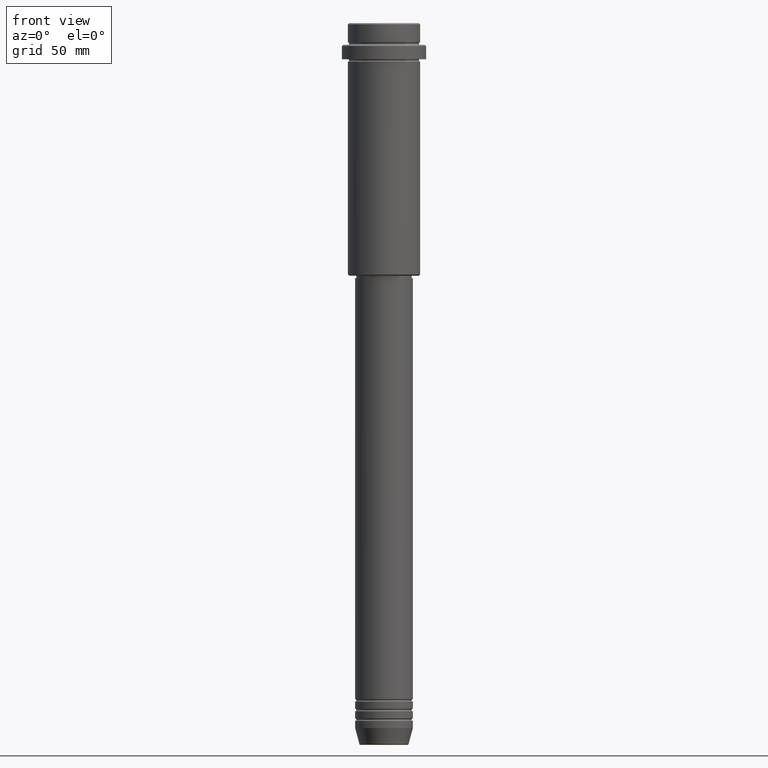
[diagram: clean part render]
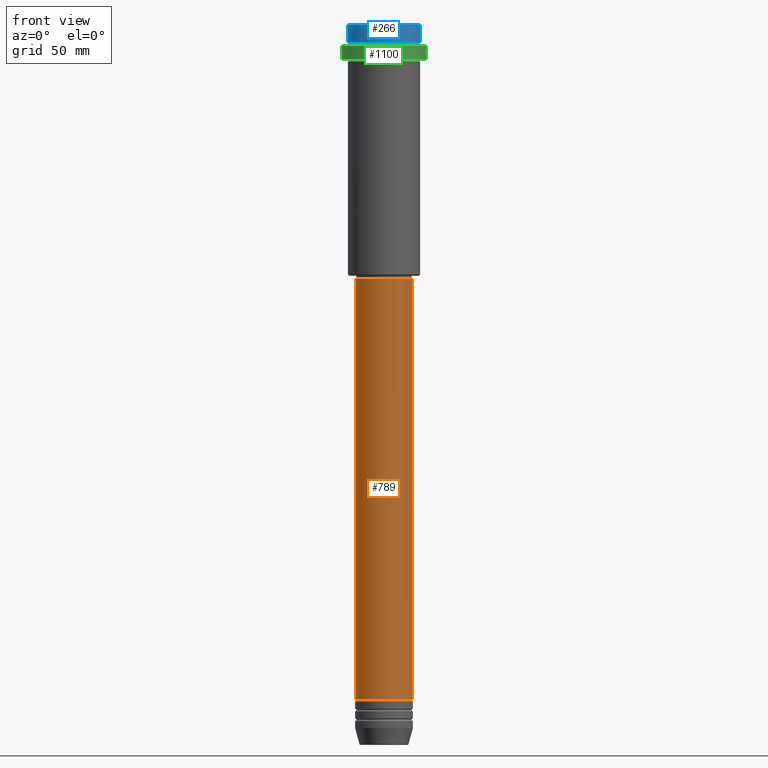
[diagram: same view with three faces highlighted in distinct colors, each labeled with its STEP entity id]
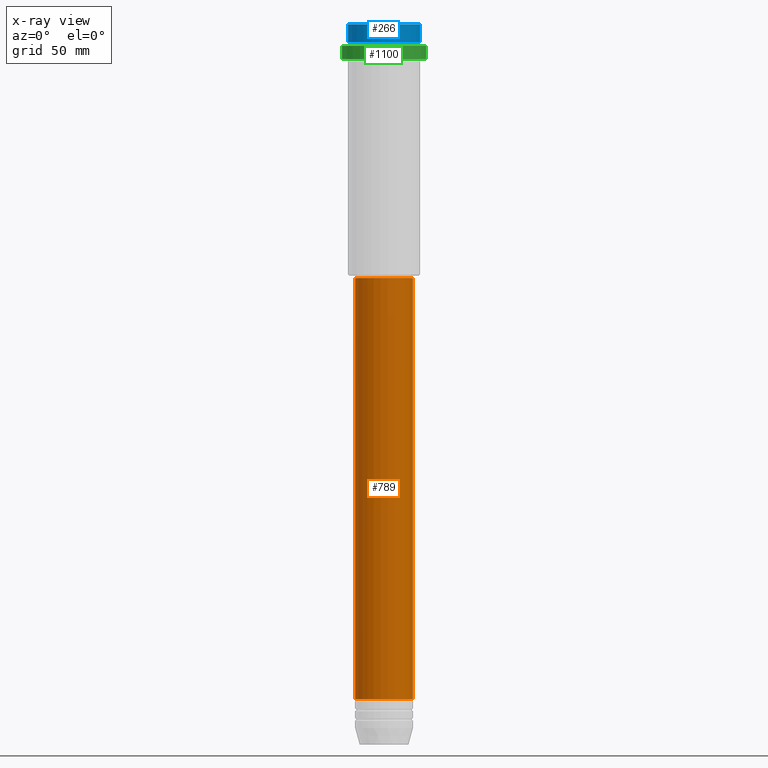
[diagram: x-ray of the same camera — body ghosted, the three highlighted faces saturated]
A machine part, front view with three faces highlighted in distinct colors.
The next image is the same camera in x-ray (body ghosted, the three faces saturated) — at least one of them is partly hidden behind the body in this view.
Their STEP definitions:

[orange] entity #789 — the highlighted cylindrical surface (edge-blend (fillet) strip) has radius 12 mm, axis along (-0, -0, 1).
#23 = EDGE_CURVE ( 'NONE', #748, #1368, #757, .T. ) ;
#52 = EDGE_CURVE ( 'NONE', #401, #372, #85, .T. ) ;
#85 = LINE ( 'NONE', #1393, #981 ) ;
#112 = ORIENTED_EDGE ( 'NONE', *, *, #1350, .T. ) ;
#120 = AXIS2_PLACEMENT_3D ( 'NONE', #912, #1064, #469 ) ;
#149 = CARTESIAN_POINT ( 'NONE',  ( -11.99999999999999822, 1.469576158976823750E-15, -105.9999999999999289 ) ) ;
#156 = DIRECTION ( 'NONE',  ( 1.000000000000000000, 0.000000000000000000, 0.000000000000000000 ) ) ;
#191 = CARTESIAN_POINT ( 'NONE',  ( -12.00000000000000000, 1.469576158976823947E-15, 0.000000000000000000 ) ) ;
#197 = CYLINDRICAL_SURFACE ( 'NONE', #120, 12.00000000000000000 ) ;
#203 = DIRECTION ( 'NONE',  ( -0.000000000000000000, -0.000000000000000000, 1.000000000000000000 ) ) ;
#217 = DIRECTION ( 'NONE',  ( -0.000000000000000000, -0.000000000000000000, 1.000000000000000000 ) ) ;
#220 = DIRECTION ( 'NONE',  ( 1.000000000000000000, 0.000000000000000000, 0.000000000000000000 ) ) ;
#287 = CIRCLE ( 'NONE', #1337, 12.00000000000000000 ) ;
#319 = CARTESIAN_POINT ( 'NONE',  ( 0.000000000000000000, 0.000000000000000000, -105.9999999999999289 ) ) ;
#332 = ORIENTED_EDGE ( 'NONE', *, *, #52, .T. ) ;
#359 = CIRCLE ( 'NONE', #564, 11.99999999999999822 ) ;
#360 = EDGE_LOOP ( 'NONE', ( #1279, #112, #332, #402 ) ) ;
#372 = VERTEX_POINT ( 'NONE', #1266 ) ;
#401 = VERTEX_POINT ( 'NONE', #1035 ) ;
#402 = ORIENTED_EDGE ( 'NONE', *, *, #903, .F. ) ;
#469 = DIRECTION ( 'NONE',  ( 1.000000000000000000, 0.000000000000000000, 0.000000000000000000 ) ) ;
#476 = CARTESIAN_POINT ( 'NONE',  ( 0.000000000000000000, 0.000000000000000000, -280.9999999999999432 ) ) ;
#479 = VECTOR ( 'NONE', #867, 1000.000000000000000 ) ;
#564 = AXIS2_PLACEMENT_3D ( 'NONE', #319, #203, #220 ) ;
#568 = DIRECTION ( 'NONE',  ( -0.000000000000000000, -0.000000000000000000, 1.000000000000000000 ) ) ;
#725 = FACE_OUTER_BOUND ( 'NONE', #360, .T. ) ;
#748 = VERTEX_POINT ( 'NONE', #904 ) ;
#757 = LINE ( 'NONE', #191, #479 ) ;
#789 = ADVANCED_FACE ( 'NONE', ( #725 ), #197, .T. ) ;
#867 = DIRECTION ( 'NONE',  ( -0.000000000000000000, -0.000000000000000000, 1.000000000000000000 ) ) ;
#903 = EDGE_CURVE ( 'NONE', #1368, #372, #359, .T. ) ;
#904 = CARTESIAN_POINT ( 'NONE',  ( -12.00000000000000000, 1.469576158976823947E-15, -280.9999999999999432 ) ) ;
#912 = CARTESIAN_POINT ( 'NONE',  ( 0.000000000000000000, 0.000000000000000000, 0.000000000000000000 ) ) ;
#981 = VECTOR ( 'NONE', #217, 1000.000000000000000 ) ;
#1035 = CARTESIAN_POINT ( 'NONE',  ( 12.00000000000000000, 0.000000000000000000, -280.9999999999999432 ) ) ;
#1064 = DIRECTION ( 'NONE',  ( -0.000000000000000000, -0.000000000000000000, 1.000000000000000000 ) ) ;
#1266 = CARTESIAN_POINT ( 'NONE',  ( 11.99999999999999822, 0.000000000000000000, -105.9999999999999289 ) ) ;
#1279 = ORIENTED_EDGE ( 'NONE', *, *, #23, .F. ) ;
#1337 = AXIS2_PLACEMENT_3D ( 'NONE', #476, #568, #156 ) ;
#1350 = EDGE_CURVE ( 'NONE', #748, #401, #287, .T. ) ;
#1368 = VERTEX_POINT ( 'NONE', #149 ) ;
#1393 = CARTESIAN_POINT ( 'NONE',  ( 12.00000000000000000, 0.000000000000000000, 0.000000000000000000 ) ) ;

[blue] entity #266 — the highlighted cylindrical surface (edge-blend (fillet) strip) has radius 15 mm, axis along (-0, -0, 1).
#39 = FACE_OUTER_BOUND ( 'NONE', #1358, .T. ) ;
#84 = VECTOR ( 'NONE', #306, 1000.000000000000000 ) ;
#115 = CARTESIAN_POINT ( 'NONE',  ( 0.000000000000000000, 0.000000000000000000, -0.5000000000000386358 ) ) ;
#210 = AXIS2_PLACEMENT_3D ( 'NONE', #485, #1133, #1048 ) ;
#266 = ADVANCED_FACE ( 'NONE', ( #39 ), #696, .T. ) ;
#282 = LINE ( 'NONE', #1031, #84 ) ;
#294 = EDGE_CURVE ( 'NONE', #1176, #1084, #800, .T. ) ;
#306 = DIRECTION ( 'NONE',  ( -0.000000000000000000, -0.000000000000000000, 1.000000000000000000 ) ) ;
#338 = VERTEX_POINT ( 'NONE', #499 ) ;
#364 = DIRECTION ( 'NONE',  ( -0.000000000000000000, -0.000000000000000000, 1.000000000000000000 ) ) ;
#384 = DIRECTION ( 'NONE',  ( 1.000000000000000000, 0.000000000000000000, 0.000000000000000000 ) ) ;
#439 = EDGE_CURVE ( 'NONE', #1084, #764, #651, .T. ) ;
#459 = CARTESIAN_POINT ( 'NONE',  ( 15.00000000000000000, 0.000000000000000000, -7.999999999999998224 ) ) ;
#485 = CARTESIAN_POINT ( 'NONE',  ( 0.000000000000000000, 0.000000000000000000, 0.000000000000000000 ) ) ;
#499 = CARTESIAN_POINT ( 'NONE',  ( -15.00000000000000000, 1.836970198721029589E-15, -0.5000000000000386358 ) ) ;
#506 = VECTOR ( 'NONE', #845, 1000.000000000000000 ) ;
#518 = CARTESIAN_POINT ( 'NONE',  ( 15.00000000000000000, 0.000000000000000000, 0.000000000000000000 ) ) ;
#638 = ORIENTED_EDGE ( 'NONE', *, *, #439, .T. ) ;
#651 = LINE ( 'NONE', #518, #506 ) ;
#654 = ORIENTED_EDGE ( 'NONE', *, *, #1299, .F. ) ;
#696 = CYLINDRICAL_SURFACE ( 'NONE', #210, 15.00000000000000000 ) ;
#764 = VERTEX_POINT ( 'NONE', #1055 ) ;
#800 = CIRCLE ( 'NONE', #1191, 15.00000000000000000 ) ;
#808 = ORIENTED_EDGE ( 'NONE', *, *, #294, .T. ) ;
#816 = CARTESIAN_POINT ( 'NONE',  ( -15.00000000000000000, 1.836970198721029589E-15, -7.999999999999998224 ) ) ;
#845 = DIRECTION ( 'NONE',  ( -0.000000000000000000, -0.000000000000000000, 1.000000000000000000 ) ) ;
#919 = CARTESIAN_POINT ( 'NONE',  ( 0.000000000000000000, 0.000000000000000000, -7.999999999999998224 ) ) ;
#927 = CIRCLE ( 'NONE', #1390, 15.00000000000000000 ) ;
#982 = DIRECTION ( 'NONE',  ( 0.000000000000000000, 0.000000000000000000, -1.000000000000000000 ) ) ;
#991 = EDGE_CURVE ( 'NONE', #764, #338, #927, .T. ) ;
#1031 = CARTESIAN_POINT ( 'NONE',  ( -15.00000000000000000, 1.836970198721029589E-15, 0.000000000000000000 ) ) ;
#1048 = DIRECTION ( 'NONE',  ( 1.000000000000000000, 0.000000000000000000, 0.000000000000000000 ) ) ;
#1055 = CARTESIAN_POINT ( 'NONE',  ( 15.00000000000000000, 0.000000000000000000, -0.5000000000000386358 ) ) ;
#1084 = VERTEX_POINT ( 'NONE', #459 ) ;
#1133 = DIRECTION ( 'NONE',  ( -0.000000000000000000, -0.000000000000000000, 1.000000000000000000 ) ) ;
#1176 = VERTEX_POINT ( 'NONE', #816 ) ;
#1191 = AXIS2_PLACEMENT_3D ( 'NONE', #919, #364, #384 ) ;
#1299 = EDGE_CURVE ( 'NONE', #1176, #338, #282, .T. ) ;
#1358 = EDGE_LOOP ( 'NONE', ( #654, #808, #638, #1370 ) ) ;
#1370 = ORIENTED_EDGE ( 'NONE', *, *, #991, .T. ) ;
#1390 = AXIS2_PLACEMENT_3D ( 'NONE', #115, #982, #1416 ) ;
#1416 = DIRECTION ( 'NONE',  ( 1.000000000000000000, 0.000000000000000000, 0.000000000000000000 ) ) ;

[green] entity #1100 — the highlighted cylindrical surface (partial cylindrical patch) has radius 17.5 mm, axis along (-0, -0, 1).
#6 = VERTEX_POINT ( 'NONE', #312 ) ;
#27 = DIRECTION ( 'NONE',  ( -0.000000000000000000, -0.000000000000000000, 1.000000000000000000 ) ) ;
#81 = AXIS2_PLACEMENT_3D ( 'NONE', #1254, #290, #610 ) ;
#135 = DIRECTION ( 'NONE',  ( 0.000000000000000000, 0.000000000000000000, -1.000000000000000000 ) ) ;
#153 = ORIENTED_EDGE ( 'NONE', *, *, #1163, .T. ) ;
#192 = DIRECTION ( 'NONE',  ( -0.000000000000000000, -0.000000000000000000, 1.000000000000000000 ) ) ;
#214 = VERTEX_POINT ( 'NONE', #900 ) ;
#286 = CIRCLE ( 'NONE', #81, 17.50000000000000000 ) ;
#290 = DIRECTION ( 'NONE',  ( -0.000000000000000000, -0.000000000000000000, 1.000000000000000000 ) ) ;
#300 = ORIENTED_EDGE ( 'NONE', *, *, #1388, .T. ) ;
#312 = CARTESIAN_POINT ( 'NONE',  ( 17.50000000000000000, 0.000000000000000000, -9.500000000000028422 ) ) ;
#355 = DIRECTION ( 'NONE',  ( 1.000000000000000000, 0.000000000000000000, 0.000000000000000000 ) ) ;
#443 = AXIS2_PLACEMENT_3D ( 'NONE', #1233, #135, #355 ) ;
#462 = ORIENTED_EDGE ( 'NONE', *, *, #1195, .F. ) ;
#487 = CARTESIAN_POINT ( 'NONE',  ( -17.50000000000000000, 2.143131898507868248E-15, 0.000000000000000000 ) ) ;
#488 = CIRCLE ( 'NONE', #443, 17.50000000000000000 ) ;
#545 = EDGE_CURVE ( 'NONE', #214, #6, #966, .T. ) ;
#567 = CARTESIAN_POINT ( 'NONE',  ( 0.000000000000000000, 0.000000000000000000, 0.000000000000000000 ) ) ;
#585 = ORIENTED_EDGE ( 'NONE', *, *, #545, .T. ) ;
#610 = DIRECTION ( 'NONE',  ( 1.000000000000000000, 0.000000000000000000, 0.000000000000000000 ) ) ;
#626 = CARTESIAN_POINT ( 'NONE',  ( 17.50000000000000000, 0.000000000000000000, 0.000000000000000000 ) ) ;
#631 = VECTOR ( 'NONE', #192, 1000.000000000000000 ) ;
#683 = CYLINDRICAL_SURFACE ( 'NONE', #906, 17.50000000000000000 ) ;
#707 = CARTESIAN_POINT ( 'NONE',  ( -17.50000000000000000, 2.143131898507868248E-15, -15.00000000000000178 ) ) ;
#778 = VECTOR ( 'NONE', #971, 1000.000000000000000 ) ;
#804 = FACE_OUTER_BOUND ( 'NONE', #815, .T. ) ;
#815 = EDGE_LOOP ( 'NONE', ( #462, #153, #585, #300 ) ) ;
#900 = CARTESIAN_POINT ( 'NONE',  ( 17.50000000000000000, 0.000000000000000000, -15.00000000000000178 ) ) ;
#906 = AXIS2_PLACEMENT_3D ( 'NONE', #567, #27, #1120 ) ;
#966 = LINE ( 'NONE', #626, #778 ) ;
#971 = DIRECTION ( 'NONE',  ( -0.000000000000000000, -0.000000000000000000, 1.000000000000000000 ) ) ;
#1100 = ADVANCED_FACE ( 'NONE', ( #804 ), #683, .T. ) ;
#1120 = DIRECTION ( 'NONE',  ( 1.000000000000000000, 0.000000000000000000, 0.000000000000000000 ) ) ;
#1163 = EDGE_CURVE ( 'NONE', #1240, #214, #286, .T. ) ;
#1195 = EDGE_CURVE ( 'NONE', #1240, #1319, #1269, .T. ) ;
#1233 = CARTESIAN_POINT ( 'NONE',  ( 0.000000000000000000, 0.000000000000000000, -9.500000000000028422 ) ) ;
#1240 = VERTEX_POINT ( 'NONE', #707 ) ;
#1254 = CARTESIAN_POINT ( 'NONE',  ( 0.000000000000000000, 0.000000000000000000, -15.00000000000000178 ) ) ;
#1269 = LINE ( 'NONE', #487, #631 ) ;
#1319 = VERTEX_POINT ( 'NONE', #1330 ) ;
#1330 = CARTESIAN_POINT ( 'NONE',  ( -17.50000000000000000, 2.143131898507868248E-15, -9.500000000000028422 ) ) ;
#1388 = EDGE_CURVE ( 'NONE', #6, #1319, #488, .T. ) ;